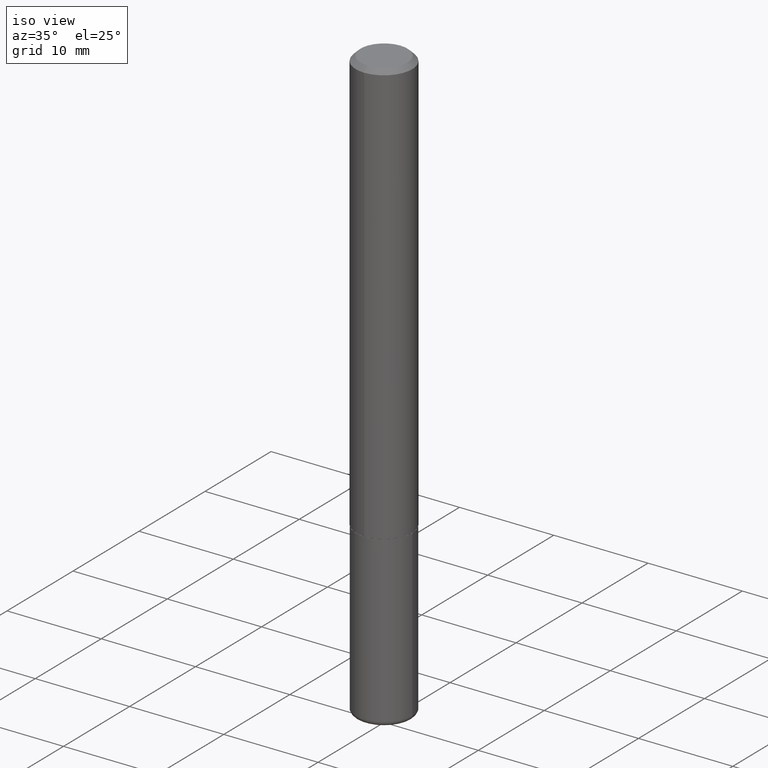
[diagram: clean part render]
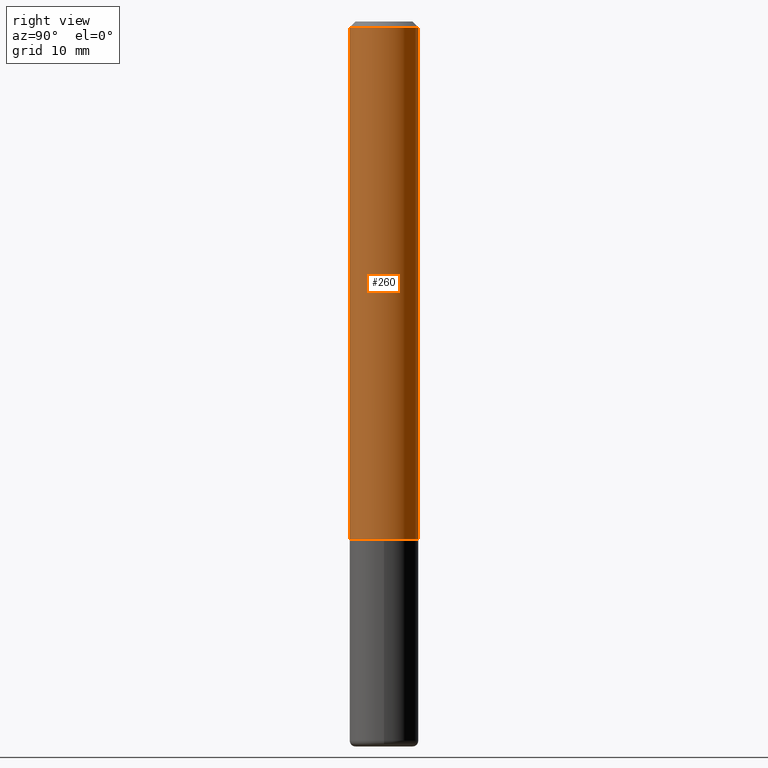
[diagram: tour spotlight — one face highlighted and labeled with its STEP entity id]
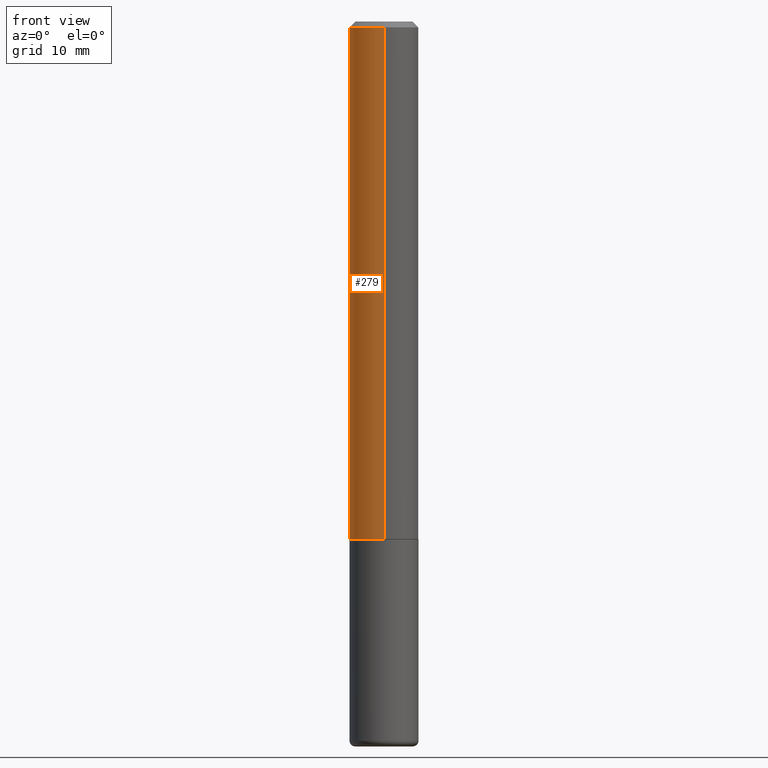
[diagram: tour spotlight — one face highlighted and labeled with its STEP entity id]
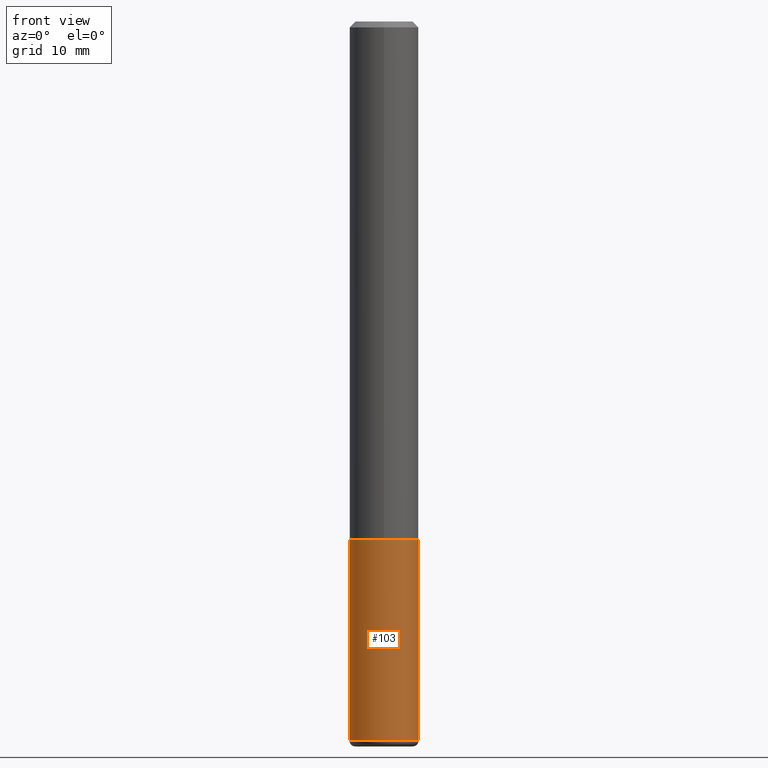
[diagram: tour spotlight — one face highlighted and labeled with its STEP entity id]
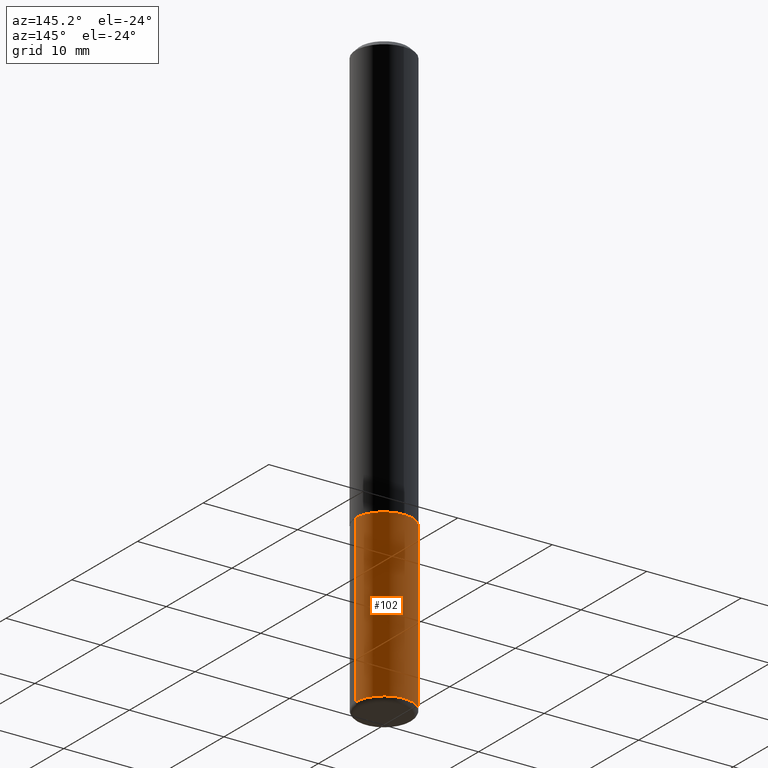
[diagram: tour spotlight — one face highlighted and labeled with its STEP entity id]
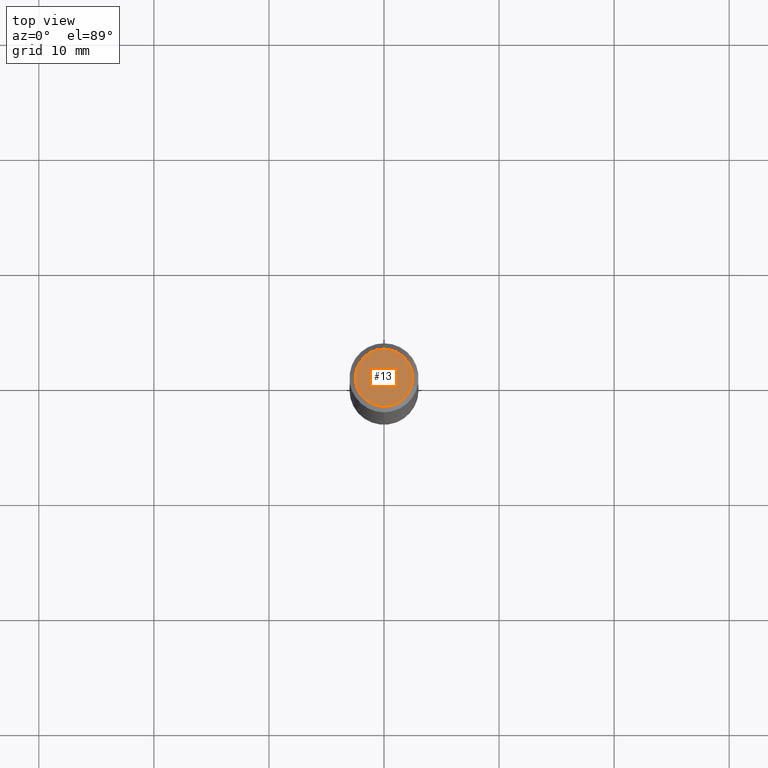
[diagram: tour spotlight — one face highlighted and labeled with its STEP entity id]
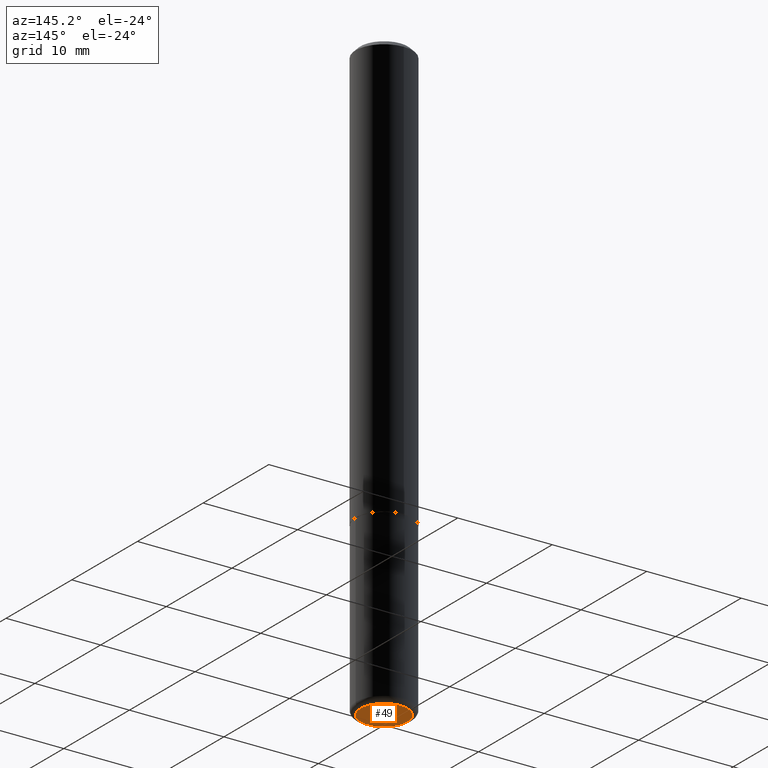
[diagram: tour spotlight — one face highlighted and labeled with its STEP entity id]
A machine part: a face-by-face anatomy tour. The part has 14 B-rep faces; the first image is the clean iso view, then the 6 largest visible faces are spotlighted one at a time (largest first), each with its STEP entity span.

Face 1 — right view, entity #260. In plain terms, the highlighted cylindrical surface (edge-blend (fillet) strip) has radius 2.9997 mm, axis along (-0, 0, 1).
Definition (entity closure, byte-faithful):
#3 = ORIENTED_EDGE ( 'NONE', *, *, #398, .T. ) ;
#6 = AXIS2_PLACEMENT_3D ( 'NONE', #379, #180, #202 ) ;
#35 = EDGE_CURVE ( 'NONE', #229, #101, #344, .T. ) ;
#75 = VECTOR ( 'NONE', #187, 39.37007874015748143 ) ;
#101 = VERTEX_POINT ( 'NONE', #368 ) ;
#125 = EDGE_LOOP ( 'NONE', ( #384, #3, #392, #277 ) ) ;
#133 = VERTEX_POINT ( 'NONE', #359 ) ;
#144 = CARTESIAN_POINT ( 'NONE',  ( -8.246878922347063544E-16, -0.1181000000000064221, -1.770599999999999730 ) ) ;
#158 = CARTESIAN_POINT ( 'NONE',  ( 4.886477535132384121E-31, -6.989349762142808870E-17, -0.02000000000000004205 ) ) ;
#161 = AXIS2_PLACEMENT_3D ( 'NONE', #158, #353, #307 ) ;
#168 = LINE ( 'NONE', #285, #387 ) ;
#180 = DIRECTION ( 'NONE',  ( -2.443238767566187138E-29, 3.494674881071396916E-15, 1.000000000000000000 ) ) ;
#187 = DIRECTION ( 'NONE',  ( -2.443238767566187138E-29, 3.494674881071397310E-15, 1.000000000000000000 ) ) ;
#190 = AXIS2_PLACEMENT_3D ( 'NONE', #264, #265, #409 ) ;
#191 = EDGE_CURVE ( 'NONE', #352, #133, #303, .T. ) ;
#202 = DIRECTION ( 'NONE',  ( -6.982962677686265922E-15, -1.000000000000000000, 4.626330217890360659E-15 ) ) ;
#205 = DIRECTION ( 'NONE',  ( -2.443238767566187138E-29, 3.494674881071397310E-15, 1.000000000000000000 ) ) ;
#209 = CYLINDRICAL_SURFACE ( 'NONE', #190, 0.1181000000000001215 ) ;
#229 = VERTEX_POINT ( 'NONE', #350 ) ;
#260 = ADVANCED_FACE ( 'NONE', ( #268 ), #209, .T. ) ;
#264 = CARTESIAN_POINT ( 'NONE',  ( 0.000000000000000000, 0.000000000000000000, 0.000000000000000000 ) ) ;
#265 = DIRECTION ( 'NONE',  ( -2.443238767566187138E-29, 3.494674881071396916E-15, 1.000000000000000000 ) ) ;
#268 = FACE_OUTER_BOUND ( 'NONE', #125, .T. ) ;
#277 = ORIENTED_EDGE ( 'NONE', *, *, #284, .F. ) ;
#284 = EDGE_CURVE ( 'NONE', #352, #229, #168, .T. ) ;
#285 = CARTESIAN_POINT ( 'NONE',  ( -8.246878922347488542E-16, -0.1181000000000001215, 4.127211034545323724E-16 ) ) ;
#303 = CIRCLE ( 'NONE', #6, 0.1181000000000002326 ) ;
#307 = DIRECTION ( 'NONE',  ( -6.982962677686265922E-15, -1.000000000000000000, 3.505890868245046092E-15 ) ) ;
#340 = CARTESIAN_POINT ( 'NONE',  ( 8.391509709326790846E-16, 0.1181000000000001215, -4.127211034545323724E-16 ) ) ;
#343 = LINE ( 'NONE', #340, #75 ) ;
#344 = CIRCLE ( 'NONE', #161, 0.1180999999999999966 ) ;
#350 = CARTESIAN_POINT ( 'NONE',  ( -8.102248135368172434E-16, -0.1181000000000000660, -0.01999999999999962919 ) ) ;
#352 = VERTEX_POINT ( 'NONE', #144 ) ;
#353 = DIRECTION ( 'NONE',  ( -2.443238767566187138E-29, 3.494674881071396916E-15, 1.000000000000000000 ) ) ;
#359 = CARTESIAN_POINT ( 'NONE',  ( 8.391509709327014685E-16, 0.1180999999999940708, -1.770600000000000840 ) ) ;
#368 = CARTESIAN_POINT ( 'NONE',  ( 8.246878922347484598E-16, 0.1180999999999999273, -0.02000000000000045838 ) ) ;
#379 = CARTESIAN_POINT ( 'NONE',  ( 4.325998561852691348E-29, -6.187671344425017014E-15, -1.770600000000000174 ) ) ;
#384 = ORIENTED_EDGE ( 'NONE', *, *, #191, .T. ) ;
#387 = VECTOR ( 'NONE', #205, 39.37007874015748143 ) ;
#392 = ORIENTED_EDGE ( 'NONE', *, *, #35, .F. ) ;
#398 = EDGE_CURVE ( 'NONE', #133, #101, #343, .T. ) ;
#409 = DIRECTION ( 'NONE',  ( -6.982962677686265922E-15, -1.000000000000000000, 3.494674881071396522E-15 ) ) ;

Face 2 — front view, entity #279. In plain terms, the highlighted cylindrical surface (edge-blend (fillet) strip) has radius 2.9997 mm, axis along (-0, 0, 1).
Definition (entity closure, byte-faithful):
#18 = CIRCLE ( 'NONE', #24, 0.1181000000000002326 ) ;
#24 = AXIS2_PLACEMENT_3D ( 'NONE', #85, #230, #208 ) ;
#33 = ORIENTED_EDGE ( 'NONE', *, *, #398, .F. ) ;
#61 = FACE_OUTER_BOUND ( 'NONE', #104, .T. ) ;
#63 = EDGE_CURVE ( 'NONE', #101, #229, #364, .T. ) ;
#75 = VECTOR ( 'NONE', #187, 39.37007874015748143 ) ;
#85 = CARTESIAN_POINT ( 'NONE',  ( 4.325998561852691348E-29, -6.187671344425017014E-15, -1.770600000000000174 ) ) ;
#101 = VERTEX_POINT ( 'NONE', #368 ) ;
#104 = EDGE_LOOP ( 'NONE', ( #33, #402, #173, #396 ) ) ;
#115 = DIRECTION ( 'NONE',  ( -2.443238767566187138E-29, 3.494674881071396916E-15, 1.000000000000000000 ) ) ;
#133 = VERTEX_POINT ( 'NONE', #359 ) ;
#135 = DIRECTION ( 'NONE',  ( -6.982962677686265922E-15, -1.000000000000000000, 3.505890868245046092E-15 ) ) ;
#144 = CARTESIAN_POINT ( 'NONE',  ( -8.246878922347063544E-16, -0.1181000000000064221, -1.770599999999999730 ) ) ;
#164 = DIRECTION ( 'NONE',  ( -6.982962677686265922E-15, -1.000000000000000000, 3.494674881071396522E-15 ) ) ;
#168 = LINE ( 'NONE', #285, #387 ) ;
#173 = ORIENTED_EDGE ( 'NONE', *, *, #284, .T. ) ;
#187 = DIRECTION ( 'NONE',  ( -2.443238767566187138E-29, 3.494674881071397310E-15, 1.000000000000000000 ) ) ;
#205 = DIRECTION ( 'NONE',  ( -2.443238767566187138E-29, 3.494674881071397310E-15, 1.000000000000000000 ) ) ;
#208 = DIRECTION ( 'NONE',  ( -6.982962677686265922E-15, -1.000000000000000000, 4.626330217890360659E-15 ) ) ;
#229 = VERTEX_POINT ( 'NONE', #350 ) ;
#230 = DIRECTION ( 'NONE',  ( -2.443238767566187138E-29, 3.494674881071396916E-15, 1.000000000000000000 ) ) ;
#279 = ADVANCED_FACE ( 'NONE', ( #61 ), #411, .T. ) ;
#280 = AXIS2_PLACEMENT_3D ( 'NONE', #417, #115, #164 ) ;
#284 = EDGE_CURVE ( 'NONE', #352, #229, #168, .T. ) ;
#285 = CARTESIAN_POINT ( 'NONE',  ( -8.246878922347488542E-16, -0.1181000000000001215, 4.127211034545323724E-16 ) ) ;
#289 = DIRECTION ( 'NONE',  ( -2.443238767566187138E-29, 3.494674881071396916E-15, 1.000000000000000000 ) ) ;
#297 = CARTESIAN_POINT ( 'NONE',  ( 4.886477535132384121E-31, -6.989349762142808870E-17, -0.02000000000000004205 ) ) ;
#325 = AXIS2_PLACEMENT_3D ( 'NONE', #297, #289, #135 ) ;
#340 = CARTESIAN_POINT ( 'NONE',  ( 8.391509709326790846E-16, 0.1181000000000001215, -4.127211034545323724E-16 ) ) ;
#343 = LINE ( 'NONE', #340, #75 ) ;
#350 = CARTESIAN_POINT ( 'NONE',  ( -8.102248135368172434E-16, -0.1181000000000000660, -0.01999999999999962919 ) ) ;
#352 = VERTEX_POINT ( 'NONE', #144 ) ;
#359 = CARTESIAN_POINT ( 'NONE',  ( 8.391509709327014685E-16, 0.1180999999999940708, -1.770600000000000840 ) ) ;
#364 = CIRCLE ( 'NONE', #325, 0.1180999999999999966 ) ;
#368 = CARTESIAN_POINT ( 'NONE',  ( 8.246878922347484598E-16, 0.1180999999999999273, -0.02000000000000045838 ) ) ;
#373 = EDGE_CURVE ( 'NONE', #133, #352, #18, .T. ) ;
#387 = VECTOR ( 'NONE', #205, 39.37007874015748143 ) ;
#396 = ORIENTED_EDGE ( 'NONE', *, *, #63, .F. ) ;
#398 = EDGE_CURVE ( 'NONE', #133, #101, #343, .T. ) ;
#402 = ORIENTED_EDGE ( 'NONE', *, *, #373, .T. ) ;
#411 = CYLINDRICAL_SURFACE ( 'NONE', #280, 0.1181000000000001215 ) ;
#417 = CARTESIAN_POINT ( 'NONE',  ( 0.000000000000000000, 0.000000000000000000, 0.000000000000000000 ) ) ;

Face 3 — front view, entity #103. In plain terms, the highlighted cylindrical surface (edge-blend (fillet) strip) has radius 2.9997 mm, axis along (-0, 0, 1).
Definition (entity closure, byte-faithful):
#19 = CARTESIAN_POINT ( 'NONE',  ( -0.1180999999999999966, -6.549172690193302663E-15, -1.771600000000000286 ) ) ;
#21 = CARTESIAN_POINT ( 'NONE',  ( -0.1181000000000000105, -7.751988011424766742E-15, -2.460600000000000342 ) ) ;
#28 = DIRECTION ( 'NONE',  ( -2.445468806185136877E-29, 3.491481338843145188E-15, 1.000000000000000000 ) ) ;
#29 = DIRECTION ( 'NONE',  ( -2.445468806185136597E-29, 3.491481338843145583E-15, 1.000000000000000000 ) ) ;
#47 = CARTESIAN_POINT ( 'NONE',  ( 0.000000000000000000, 0.000000000000000000, 0.000000000000000000 ) ) ;
#51 = CARTESIAN_POINT ( 'NONE',  ( -0.1180999999999999966, 8.391509709326782957E-16, -5.809262341591043784E-30 ) ) ;
#54 = DIRECTION ( 'NONE',  ( -2.445468806185136597E-29, 3.491481338843145583E-15, 1.000000000000000000 ) ) ;
#59 = AXIS2_PLACEMENT_3D ( 'NONE', #176, #54, #407 ) ;
#81 = ORIENTED_EDGE ( 'NONE', *, *, #194, .T. ) ;
#86 = DIRECTION ( 'NONE',  ( 1.000000000000000000, -6.982962677686265133E-15, 0.000000000000000000 ) ) ;
#92 = ORIENTED_EDGE ( 'NONE', *, *, #167, .F. ) ;
#103 = ADVANCED_FACE ( 'NONE', ( #369 ), #113, .T. ) ;
#109 = CARTESIAN_POINT ( 'NONE',  ( 0.1180999999999999966, -7.010196232129265043E-15, -1.771600000000000286 ) ) ;
#113 = CYLINDRICAL_SURFACE ( 'NONE', #399, 0.1180999999999999966 ) ;
#119 = EDGE_LOOP ( 'NONE', ( #246, #315, #81, #92 ) ) ;
#123 = DIRECTION ( 'NONE',  ( -2.445468806185136597E-29, 3.491481338843145583E-15, 1.000000000000000000 ) ) ;
#128 = CIRCLE ( 'NONE', #156, 0.1180999999999999966 ) ;
#137 = VECTOR ( 'NONE', #28, 39.37007874015748143 ) ;
#140 = LINE ( 'NONE', #51, #137 ) ;
#143 = LINE ( 'NONE', #210, #225 ) ;
#151 = DIRECTION ( 'NONE',  ( -2.445468806185136877E-29, 3.491481338843145188E-15, 1.000000000000000000 ) ) ;
#156 = AXIS2_PLACEMENT_3D ( 'NONE', #342, #29, #86 ) ;
#160 = VERTEX_POINT ( 'NONE', #21 ) ;
#167 = EDGE_CURVE ( 'NONE', #198, #345, #128, .T. ) ;
#172 = EDGE_CURVE ( 'NONE', #160, #262, #267, .T. ) ;
#176 = CARTESIAN_POINT ( 'NONE',  ( 6.017320544499148018E-29, -8.591138982357444151E-15, -2.460600000000000342 ) ) ;
#194 = EDGE_CURVE ( 'NONE', #262, #345, #143, .T. ) ;
#198 = VERTEX_POINT ( 'NONE', #19 ) ;
#210 = CARTESIAN_POINT ( 'NONE',  ( 0.1180999999999999966, -8.246878922347480654E-16, 5.758764772215000440E-30 ) ) ;
#225 = VECTOR ( 'NONE', #151, 39.37007874015748143 ) ;
#246 = ORIENTED_EDGE ( 'NONE', *, *, #251, .F. ) ;
#251 = EDGE_CURVE ( 'NONE', #160, #198, #140, .T. ) ;
#262 = VERTEX_POINT ( 'NONE', #338 ) ;
#267 = CIRCLE ( 'NONE', #59, 0.1180999999999999966 ) ;
#315 = ORIENTED_EDGE ( 'NONE', *, *, #172, .T. ) ;
#330 = DIRECTION ( 'NONE',  ( 1.000000000000000000, -6.982962677686266711E-15, 4.876176775795936353E-29 ) ) ;
#338 = CARTESIAN_POINT ( 'NONE',  ( 0.1181000000000000105, -9.415826874592192413E-15, -2.460600000000000342 ) ) ;
#342 = CARTESIAN_POINT ( 'NONE',  ( 4.332392537037588763E-29, -6.185508339894517569E-15, -1.771600000000000286 ) ) ;
#345 = VERTEX_POINT ( 'NONE', #109 ) ;
#369 = FACE_OUTER_BOUND ( 'NONE', #119, .T. ) ;
#399 = AXIS2_PLACEMENT_3D ( 'NONE', #47, #123, #330 ) ;
#407 = DIRECTION ( 'NONE',  ( 1.000000000000000000, -6.982962677686273021E-15, 0.000000000000000000 ) ) ;

Face 4 — auxiliary view, entity #102. In plain terms, the highlighted cylindrical surface (edge-blend (fillet) strip) has radius 2.9997 mm, axis along (-0, 0, 1).
Definition (entity closure, byte-faithful):
#19 = CARTESIAN_POINT ( 'NONE',  ( -0.1180999999999999966, -6.549172690193302663E-15, -1.771600000000000286 ) ) ;
#21 = CARTESIAN_POINT ( 'NONE',  ( -0.1181000000000000105, -7.751988011424766742E-15, -2.460600000000000342 ) ) ;
#28 = DIRECTION ( 'NONE',  ( -2.445468806185136877E-29, 3.491481338843145188E-15, 1.000000000000000000 ) ) ;
#31 = CIRCLE ( 'NONE', #80, 0.1180999999999999966 ) ;
#32 = ORIENTED_EDGE ( 'NONE', *, *, #251, .T. ) ;
#36 = ORIENTED_EDGE ( 'NONE', *, *, #367, .F. ) ;
#51 = CARTESIAN_POINT ( 'NONE',  ( -0.1180999999999999966, 8.391509709326782957E-16, -5.809262341591043784E-30 ) ) ;
#77 = FACE_OUTER_BOUND ( 'NONE', #122, .T. ) ;
#80 = AXIS2_PLACEMENT_3D ( 'NONE', #83, #207, #388 ) ;
#83 = CARTESIAN_POINT ( 'NONE',  ( 6.017320544499148018E-29, -8.591138982357444151E-15, -2.460600000000000342 ) ) ;
#102 = ADVANCED_FACE ( 'NONE', ( #77 ), #199, .T. ) ;
#107 = DIRECTION ( 'NONE',  ( -2.445468806185136597E-29, 3.491481338843145583E-15, 1.000000000000000000 ) ) ;
#109 = CARTESIAN_POINT ( 'NONE',  ( 0.1180999999999999966, -7.010196232129265043E-15, -1.771600000000000286 ) ) ;
#122 = EDGE_LOOP ( 'NONE', ( #129, #32, #36, #389 ) ) ;
#129 = ORIENTED_EDGE ( 'NONE', *, *, #146, .T. ) ;
#137 = VECTOR ( 'NONE', #28, 39.37007874015748143 ) ;
#140 = LINE ( 'NONE', #51, #137 ) ;
#143 = LINE ( 'NONE', #210, #225 ) ;
#146 = EDGE_CURVE ( 'NONE', #262, #160, #31, .T. ) ;
#151 = DIRECTION ( 'NONE',  ( -2.445468806185136877E-29, 3.491481338843145188E-15, 1.000000000000000000 ) ) ;
#152 = DIRECTION ( 'NONE',  ( 1.000000000000000000, -6.982962677686265133E-15, 0.000000000000000000 ) ) ;
#160 = VERTEX_POINT ( 'NONE', #21 ) ;
#194 = EDGE_CURVE ( 'NONE', #262, #345, #143, .T. ) ;
#198 = VERTEX_POINT ( 'NONE', #19 ) ;
#199 = CYLINDRICAL_SURFACE ( 'NONE', #243, 0.1180999999999999966 ) ;
#207 = DIRECTION ( 'NONE',  ( -2.445468806185136597E-29, 3.491481338843145583E-15, 1.000000000000000000 ) ) ;
#210 = CARTESIAN_POINT ( 'NONE',  ( 0.1180999999999999966, -8.246878922347480654E-16, 5.758764772215000440E-30 ) ) ;
#225 = VECTOR ( 'NONE', #151, 39.37007874015748143 ) ;
#226 = DIRECTION ( 'NONE',  ( 1.000000000000000000, -6.982962677686266711E-15, 4.876176775795936353E-29 ) ) ;
#236 = CARTESIAN_POINT ( 'NONE',  ( 4.332392537037588763E-29, -6.185508339894517569E-15, -1.771600000000000286 ) ) ;
#243 = AXIS2_PLACEMENT_3D ( 'NONE', #291, #107, #226 ) ;
#251 = EDGE_CURVE ( 'NONE', #160, #198, #140, .T. ) ;
#262 = VERTEX_POINT ( 'NONE', #338 ) ;
#291 = CARTESIAN_POINT ( 'NONE',  ( 0.000000000000000000, 0.000000000000000000, 0.000000000000000000 ) ) ;
#338 = CARTESIAN_POINT ( 'NONE',  ( 0.1181000000000000105, -9.415826874592192413E-15, -2.460600000000000342 ) ) ;
#345 = VERTEX_POINT ( 'NONE', #109 ) ;
#355 = CIRCLE ( 'NONE', #410, 0.1180999999999999966 ) ;
#367 = EDGE_CURVE ( 'NONE', #345, #198, #355, .T. ) ;
#381 = DIRECTION ( 'NONE',  ( -2.445468806185136597E-29, 3.491481338843145583E-15, 1.000000000000000000 ) ) ;
#388 = DIRECTION ( 'NONE',  ( 1.000000000000000000, -6.982962677686273021E-15, 0.000000000000000000 ) ) ;
#389 = ORIENTED_EDGE ( 'NONE', *, *, #194, .F. ) ;
#410 = AXIS2_PLACEMENT_3D ( 'NONE', #236, #381, #152 ) ;

Face 5 — top view, entity #13. In plain terms, the highlighted planar face has unit normal (0, -0, -1).
Definition (entity closure, byte-faithful):
#13 = ADVANCED_FACE ( 'NONE', ( #60 ), #185, .F. ) ;
#53 = DIRECTION ( 'NONE',  ( -6.982962677686265922E-15, -1.000000000000000000, 3.494674881071397705E-15 ) ) ;
#60 = FACE_OUTER_BOUND ( 'NONE', #247, .T. ) ;
#67 = VERTEX_POINT ( 'NONE', #261 ) ;
#69 = CARTESIAN_POINT ( 'NONE',  ( -6.369341406389364514E-45, 9.110357005365375257E-31, 2.606925483887165818E-16 ) ) ;
#71 = CIRCLE ( 'NONE', #395, 0.09809999999999975684 ) ;
#120 = AXIS2_PLACEMENT_3D ( 'NONE', #69, #162, #157 ) ;
#124 = DIRECTION ( 'NONE',  ( 2.443238767566186578E-29, -3.494674881071397310E-15, -1.000000000000000000 ) ) ;
#157 = DIRECTION ( 'NONE',  ( -6.982962677686265922E-15, -1.000000000000000000, 3.494674881071397705E-15 ) ) ;
#162 = DIRECTION ( 'NONE',  ( -2.443238767566187138E-29, 3.494674881071396916E-15, 1.000000000000000000 ) ) ;
#179 = CARTESIAN_POINT ( 'NONE',  ( -6.369341406389364514E-45, 9.110357005365375257E-31, 2.606925483887165818E-16 ) ) ;
#182 = ORIENTED_EDGE ( 'NONE', *, *, #314, .T. ) ;
#185 = PLANE ( 'NONE',  #253 ) ;
#212 = CARTESIAN_POINT ( 'NONE',  ( 7.548582654578847672E-16, 0.09809999999999975684, -8.213505744438662948E-17 ) ) ;
#214 = DIRECTION ( 'NONE',  ( 6.982962677686265922E-15, 1.000000000000000000, -3.494674881071397310E-15 ) ) ;
#247 = EDGE_LOOP ( 'NONE', ( #182, #274 ) ) ;
#253 = AXIS2_PLACEMENT_3D ( 'NONE', #391, #124, #214 ) ;
#261 = CARTESIAN_POINT ( 'NONE',  ( -7.416198335591014190E-16, -0.09809999999999975684, 6.035201542218197439E-16 ) ) ;
#266 = DIRECTION ( 'NONE',  ( -2.443238767566187138E-29, 3.494674881071396916E-15, 1.000000000000000000 ) ) ;
#274 = ORIENTED_EDGE ( 'NONE', *, *, #403, .T. ) ;
#292 = CIRCLE ( 'NONE', #120, 0.09809999999999975684 ) ;
#314 = EDGE_CURVE ( 'NONE', #400, #67, #71, .T. ) ;
#391 = CARTESIAN_POINT ( 'NONE',  ( 6.850286386810209760E-16, 0.09809999999999975684, -2.124813316387448711E-16 ) ) ;
#395 = AXIS2_PLACEMENT_3D ( 'NONE', #179, #266, #53 ) ;
#400 = VERTEX_POINT ( 'NONE', #212 ) ;
#403 = EDGE_CURVE ( 'NONE', #67, #400, #292, .T. ) ;

Face 6 — auxiliary view, entity #49. In plain terms, the highlighted planar face has unit normal (0, -0, -1).
Definition (entity closure, byte-faithful):
#11 = FACE_OUTER_BOUND ( 'NONE', #311, .T. ) ;
#22 = CARTESIAN_POINT ( 'NONE',  ( 0.09840000000000000135, -9.347044692216982806E-15, -2.480300000000000171 ) ) ;
#23 = DIRECTION ( 'NONE',  ( 1.000000000000000000, -6.982962677686261977E-15, 0.000000000000000000 ) ) ;
#46 = DIRECTION ( 'NONE',  ( 2.438088387897960049E-29, -3.491481338843145188E-15, -1.000000000000000000 ) ) ;
#49 = ADVANCED_FACE ( 'NONE', ( #11 ), #339, .T. ) ;
#70 = AXIS2_PLACEMENT_3D ( 'NONE', #134, #334, #259 ) ;
#74 = EDGE_CURVE ( 'NONE', #237, #204, #136, .T. ) ;
#78 = CARTESIAN_POINT ( 'NONE',  ( 6.065496279980994755E-29, -8.659921164732655335E-15, -2.480300000000000171 ) ) ;
#106 = ORIENTED_EDGE ( 'NONE', *, *, #74, .F. ) ;
#111 = EDGE_CURVE ( 'NONE', #204, #237, #155, .T. ) ;
#134 = CARTESIAN_POINT ( 'NONE',  ( 6.065496279980994755E-29, -8.659921164732655335E-15, -2.480300000000000171 ) ) ;
#136 = CIRCLE ( 'NONE', #70, 0.09840000000000000135 ) ;
#155 = CIRCLE ( 'NONE', #201, 0.09840000000000000135 ) ;
#201 = AXIS2_PLACEMENT_3D ( 'NONE', #239, #327, #23 ) ;
#204 = VERTEX_POINT ( 'NONE', #347 ) ;
#211 = ORIENTED_EDGE ( 'NONE', *, *, #111, .F. ) ;
#237 = VERTEX_POINT ( 'NONE', #22 ) ;
#239 = CARTESIAN_POINT ( 'NONE',  ( 6.065496279980994755E-29, -8.659921164732655335E-15, -2.480300000000000171 ) ) ;
#259 = DIRECTION ( 'NONE',  ( 1.000000000000000000, -6.982962677686261977E-15, 0.000000000000000000 ) ) ;
#311 = EDGE_LOOP ( 'NONE', ( #106, #211 ) ) ;
#327 = DIRECTION ( 'NONE',  ( -2.445468806185136597E-29, 3.491481338843145583E-15, 1.000000000000000000 ) ) ;
#334 = DIRECTION ( 'NONE',  ( -2.445468806185136597E-29, 3.491481338843145583E-15, 1.000000000000000000 ) ) ;
#336 = AXIS2_PLACEMENT_3D ( 'NONE', #78, #46, #371 ) ;
#339 = PLANE ( 'NONE',  #336 ) ;
#347 = CARTESIAN_POINT ( 'NONE',  ( -0.09840000000000000135, -7.856367562084741595E-15, -2.480300000000000171 ) ) ;
#371 = DIRECTION ( 'NONE',  ( -1.000000000000000000, 6.982962677686265922E-15, -4.876176775795935793E-29 ) ) ;